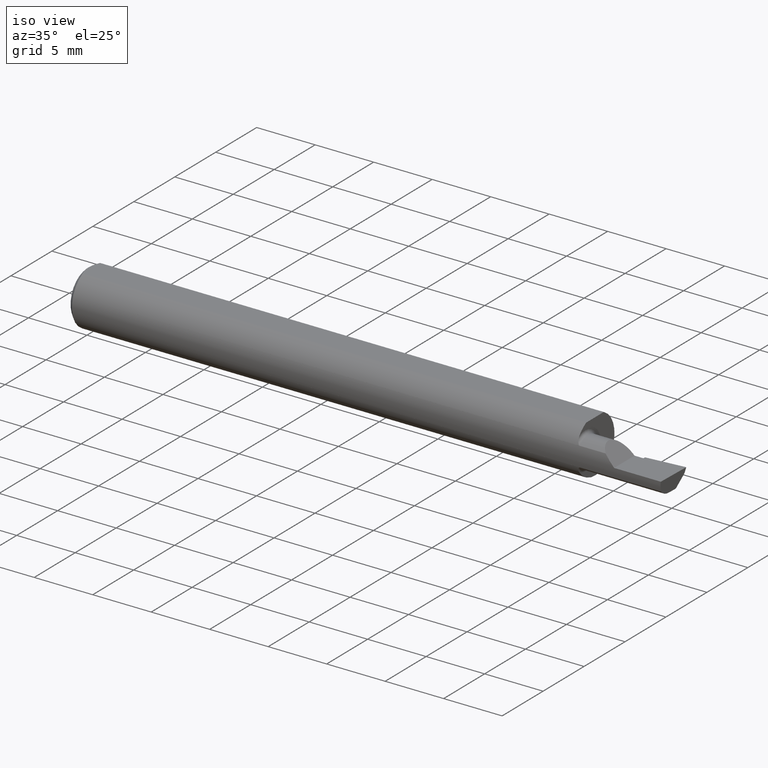
[diagram: clean part render]
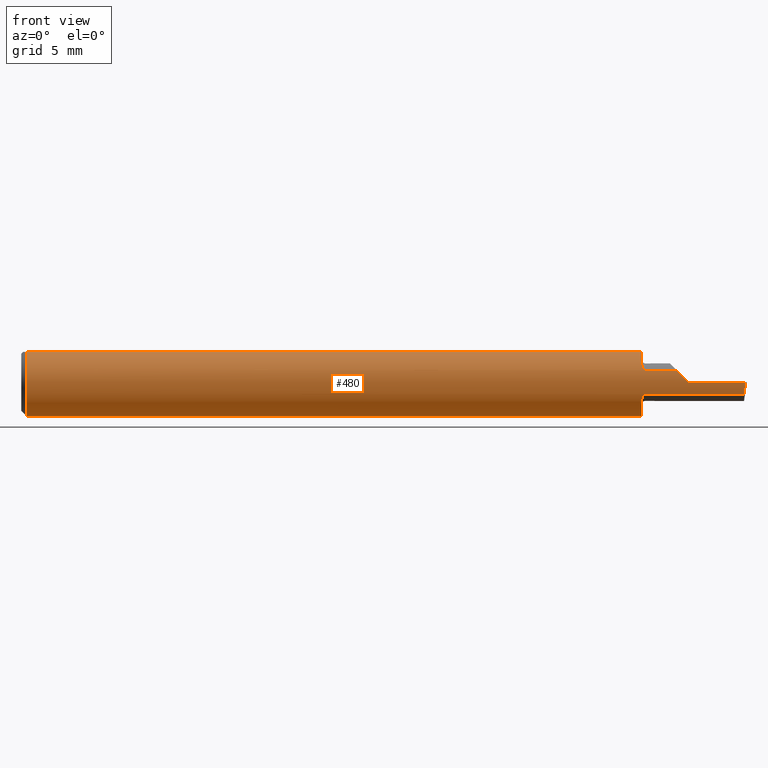
[diagram: tour spotlight — one face highlighted and labeled with its STEP entity id]
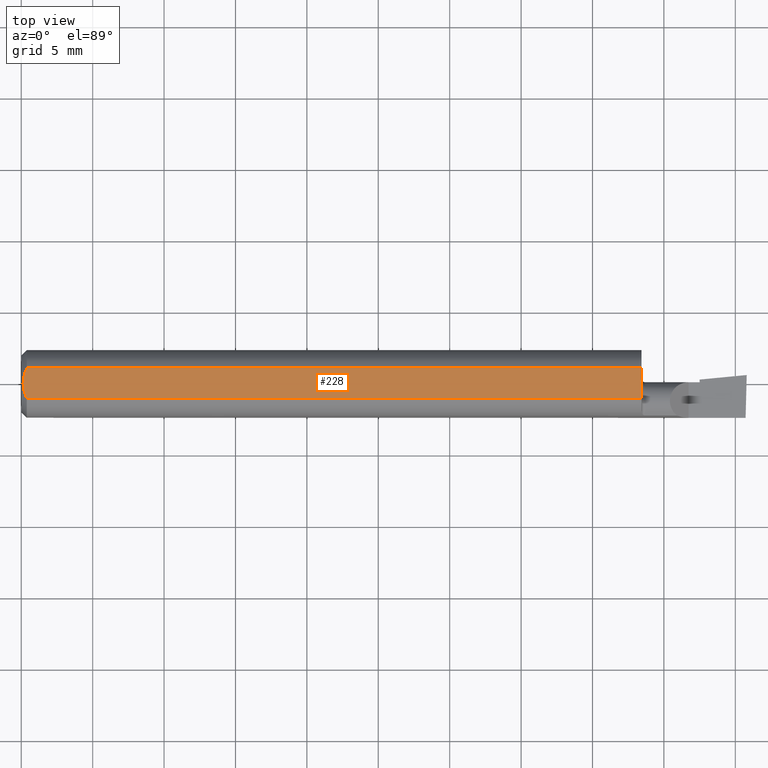
[diagram: tour spotlight — one face highlighted and labeled with its STEP entity id]
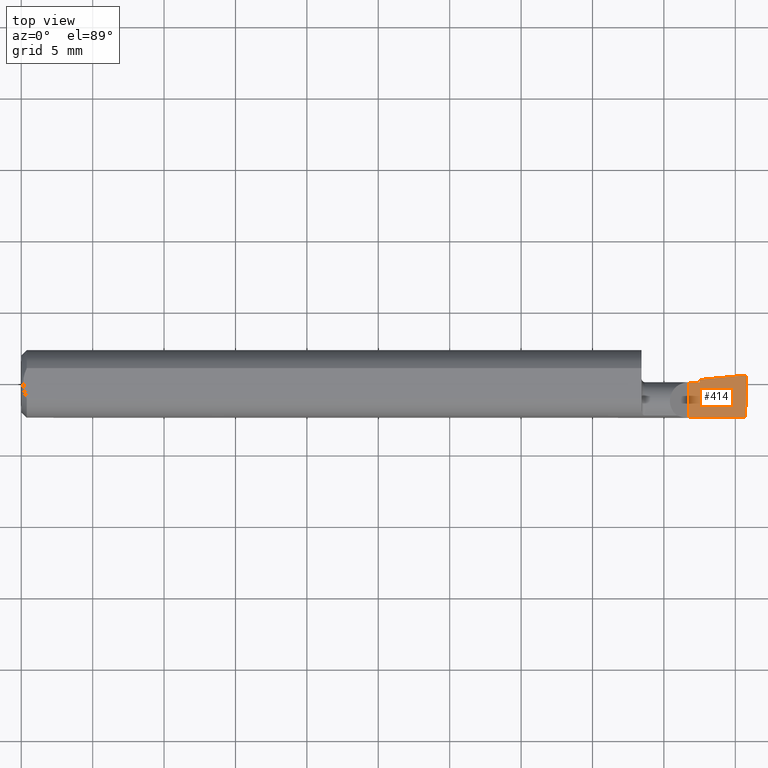
[diagram: tour spotlight — one face highlighted and labeled with its STEP entity id]
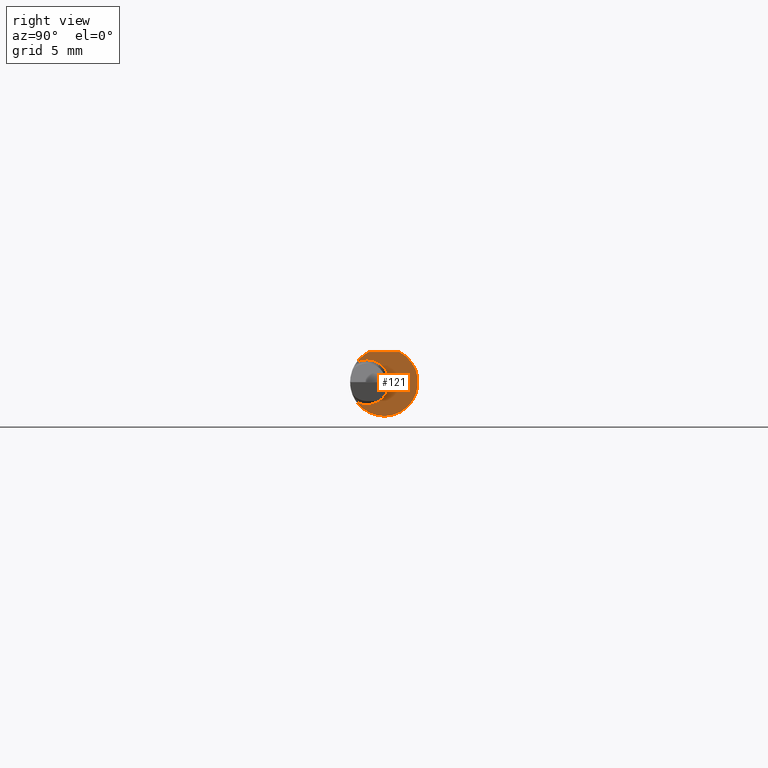
[diagram: tour spotlight — one face highlighted and labeled with its STEP entity id]
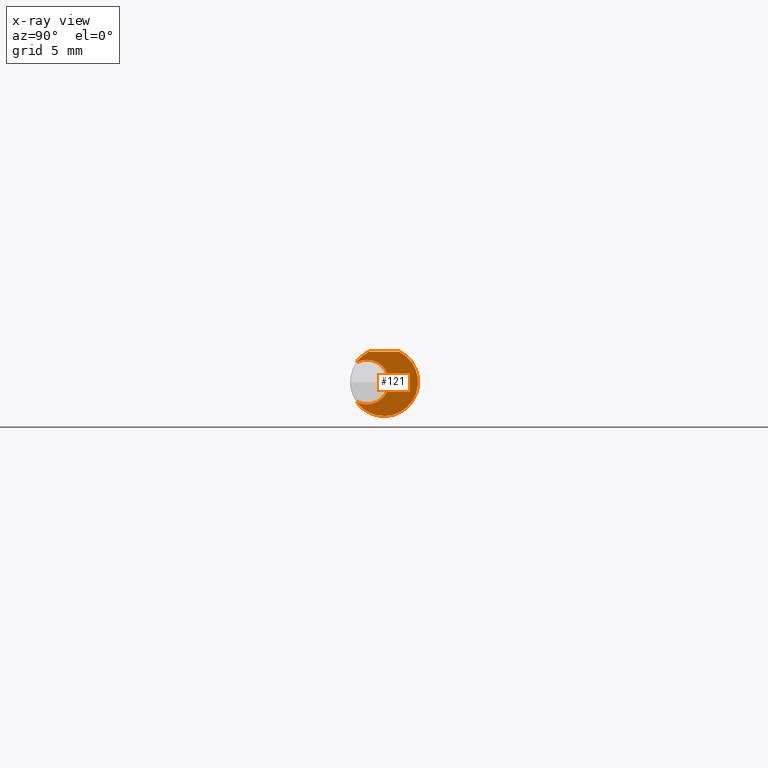
[diagram: x-ray of the same camera — body ghosted, this tour face saturated]
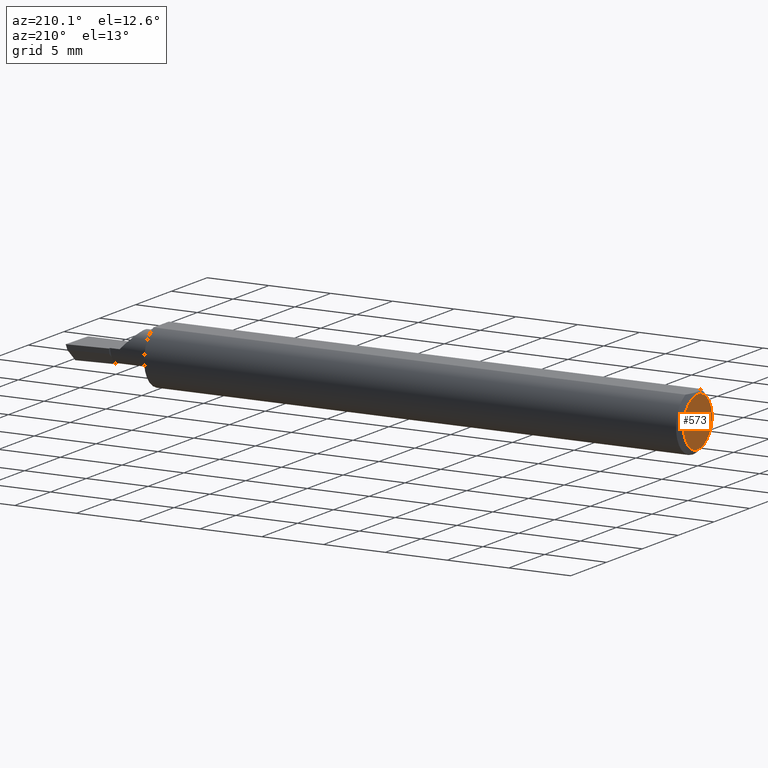
[diagram: tour spotlight — one face highlighted and labeled with its STEP entity id]
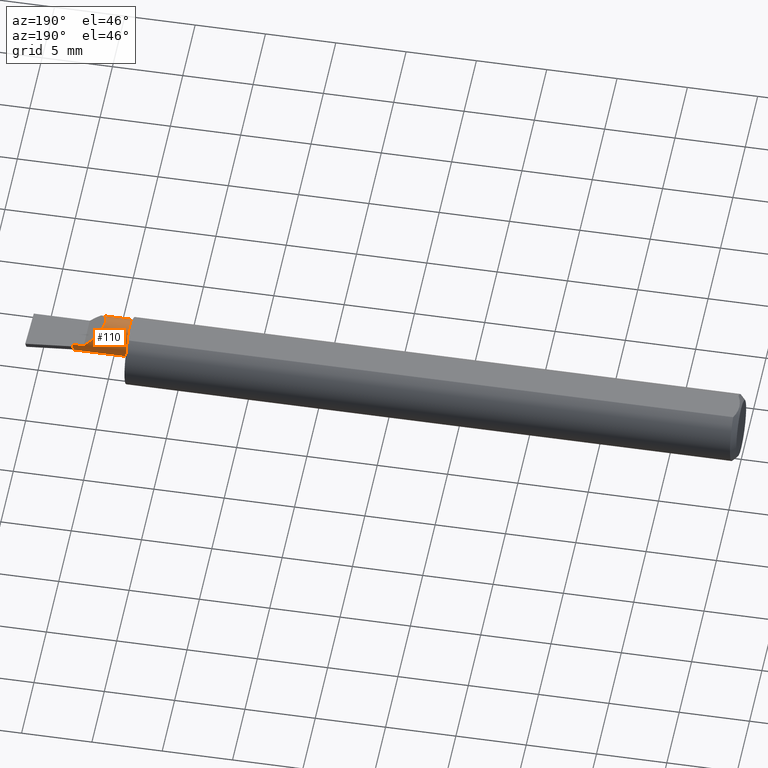
[diagram: tour spotlight — one face highlighted and labeled with its STEP entity id]
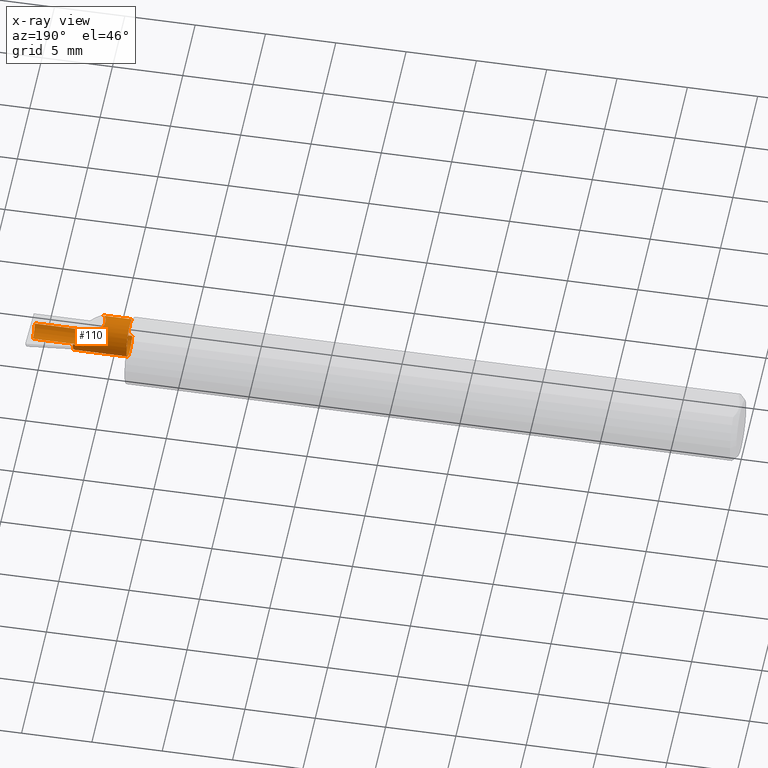
[diagram: x-ray of the same camera — body ghosted, this tour face saturated]
A machine part: a face-by-face anatomy tour. The part has 17 B-rep faces; the first image is the clean iso view, then the 6 largest visible faces are spotlighted one at a time (largest first), each with its STEP entity span.

Face 1 — front view, entity #480. In plain terms, the highlighted cylindrical surface (edge-blend (fillet) strip) has radius 2.3774 mm, axis along (-1, -0, -0).
Definition (entity closure, byte-faithful):
#2 = CARTESIAN_POINT ( 'NONE',  ( 1.807072063843881526, -0.08761684210526321515, 0.03292793615611791513 ) ) ;
#5 = EDGE_CURVE ( 'NONE', #476, #45, #74, .T. ) ;
#8 = CARTESIAN_POINT ( 'NONE',  ( 0.01499999999999999598, 0.000000000000000000, 0.000000000000000000 ) ) ;
#13 = VERTEX_POINT ( 'NONE', #88 ) ;
#18 = DIRECTION ( 'NONE',  ( -1.000000000000000000, -0.000000000000000000, -0.000000000000000000 ) ) ;
#35 = CARTESIAN_POINT ( 'NONE',  ( 1.715286915582778349, -0.08634457937708869824, -0.03614788177268708769 ) ) ;
#38 = CARTESIAN_POINT ( 'NONE',  ( 1.719999999999999973, -0.08761684210526313188, -0.03292793615611801228 ) ) ;
#45 = VERTEX_POINT ( 'NONE', #188 ) ;
#51 = DIRECTION ( 'NONE',  ( 0.000000000000000000, 0.000000000000000000, 1.000000000000000000 ) ) ;
#59 = CARTESIAN_POINT ( 'NONE',  ( 1.719999999999999973, -0.08761684210526289596, 0.03292793615611830371 ) ) ;
#60 = ORIENTED_EDGE ( 'NONE', *, *, #95, .F. ) ;
#62 = CARTESIAN_POINT ( 'NONE',  ( 1.709999999999898490, -0.07844579323533026893, 0.05128294267166446513 ) ) ;
#63 = ORIENTED_EDGE ( 'NONE', *, *, #298, .F. ) ;
#67 = CARTESIAN_POINT ( 'NONE',  ( 0.01499999999999999598, 0.000000000000000000, 0.000000000000000000 ) ) ;
#68 = VECTOR ( 'NONE', #445, 39.37007874015748143 ) ;
#74 = B_SPLINE_CURVE_WITH_KNOTS ( 'NONE', 3,
 ( #402, #406, #266, #454, #35, #231, #135, #323, #272, #224 ),
 .UNSPECIFIED., .F., .F.,
 ( 4, 2, 2, 2, 4 ),
 ( 1.964515010636166552E-07, 9.235243646263626891E-05, 0.0001845084214242089275, 0.0003688203913473437549, 0.0007374443311936186140 ),
 .UNSPECIFIED. ) ;
#75 = CARTESIAN_POINT ( 'NONE',  ( 0.000000000000000000, -0.04209513035969835587, 0.08360000000000000764 ) ) ;
#82 = CIRCLE ( 'NONE', #274, 0.09360000000000001652 ) ;
#86 = EDGE_CURVE ( 'NONE', #496, #118, #593, .T. ) ;
#88 = CARTESIAN_POINT ( 'NONE',  ( 1.807072063843881526, -0.08761684210526321515, 0.03292793615611791513 ) ) ;
#92 = VERTEX_POINT ( 'NONE', #620 ) ;
#93 = EDGE_CURVE ( 'NONE', #509, #13, #232, .T. ) ;
#95 = EDGE_CURVE ( 'NONE', #92, #341, #484, .T. ) ;
#96 = CARTESIAN_POINT ( 'NONE',  ( 1.840000000000000080, -0.09360000000000005815, 1.959434878635762025E-17 ) ) ;
#97 = CARTESIAN_POINT ( 'NONE',  ( 1.996910061254837165, -0.09360000000000009979, -6.663204267364720514E-17 ) ) ;
#107 = CARTESIAN_POINT ( 'NONE',  ( 1.996910061254837165, -0.09360000000000009979, -6.663204267364720514E-17 ) ) ;
#114 = CARTESIAN_POINT ( 'NONE',  ( 1.709999999999999964, 0.000000000000000000, 0.000000000000000000 ) ) ;
#115 = ORIENTED_EDGE ( 'NONE', *, *, #183, .T. ) ;
#117 = CARTESIAN_POINT ( 'NONE',  ( 1.715303445302489349, -0.08635481258357650958, 0.03612357338114666194 ) ) ;
#118 = VERTEX_POINT ( 'NONE', #107 ) ;
#120 = CARTESIAN_POINT ( 'NONE',  ( 5.659797890829555466E-31, -0.09359999999999998876, 1.030335658007946046E-15 ) ) ;
#131 = ORIENTED_EDGE ( 'NONE', *, *, #5, .F. ) ;
#135 = CARTESIAN_POINT ( 'NONE',  ( 1.712677195950602860, -0.08414098289636359751, -0.04106822915973741550 ) ) ;
#139 = CARTESIAN_POINT ( 'NONE',  ( 1.709999999999999964, -0.07563789473684218168, 0.05513500593795547106 ) ) ;
#143 = LINE ( 'NONE', #276, #335 ) ;
#144 = CARTESIAN_POINT ( 'NONE',  ( 1.840000000000000080, -0.09360000000000005815, 1.959434878635762025E-17 ) ) ;
#148 = B_SPLINE_CURVE_WITH_KNOTS ( 'NONE', 3,
 ( #488, #62, #442, #250, #483, #117, #387, #491, #585, #59 ),
 .UNSPECIFIED., .F., .F.,
 ( 4, 2, 2, 2, 4 ),
 ( 0.0002213210176920300961, 0.0005840120096731141620, 0.0007653575056636530236, 0.0008560302536589276586, 0.0009467030016542025105 ),
 .UNSPECIFIED. ) ;
#150 = VECTOR ( 'NONE', #495, 39.37007874015748143 ) ;
#167 = ORIENTED_EDGE ( 'NONE', *, *, #285, .F. ) ;
#174 = ORIENTED_EDGE ( 'NONE', *, *, #510, .F. ) ;
#177 = ORIENTED_EDGE ( 'NONE', *, *, #199, .T. ) ;
#181 = CIRCLE ( 'NONE', #440, 0.09360000000000001652 ) ;
#183 = EDGE_CURVE ( 'NONE', #92, #603, #383, .T. ) ;
#185 = EDGE_LOOP ( 'NONE', ( #167, #499, #177, #334, #321, #63, #60, #115, #174, #319, #351, #247, #131 ) ) ;
#188 = CARTESIAN_POINT ( 'NONE',  ( 1.709999999999999964, -0.07563789473684218168, -0.05513500593795547106 ) ) ;
#192 = DIRECTION ( 'NONE',  ( 1.000000000000000000, -4.268512490100411279E-18, 0.000000000000000000 ) ) ;
#199 = EDGE_CURVE ( 'NONE', #118, #509, #385, .T. ) ;
#204 = CARTESIAN_POINT ( 'NONE',  ( 0.000000000000000000, 0.000000000000000000, 0.000000000000000000 ) ) ;
#208 = LINE ( 'NONE', #539, #518 ) ;
#224 = CARTESIAN_POINT ( 'NONE',  ( 1.709999999999999964, -0.07563789473684218168, -0.05513500593795547106 ) ) ;
#231 = CARTESIAN_POINT ( 'NONE',  ( 1.713517105801555918, -0.08509955497191655505, -0.03903086882732484386 ) ) ;
#232 =( BOUNDED_CURVE ( )  B_SPLINE_CURVE ( 3, ( #144, #569, #376, #2 ),
 .UNSPECIFIED., .F., .F. ) 
 B_SPLINE_CURVE_WITH_KNOTS ( ( 4, 4 ),
 ( 4.712388980384689674, 5.071876106261397510 ),
 .UNSPECIFIED. ) 
 CURVE ( )  GEOMETRIC_REPRESENTATION_ITEM ( )  RATIONAL_B_SPLINE_CURVE ( ( 1.000000000000000000, 0.9892597135044074452, 0.9892597135044074452, 1.000000000000000000 ) ) 
 REPRESENTATION_ITEM ( '' )  );
#236 = CARTESIAN_POINT ( 'NONE',  ( 1.994214979946649979, -0.09158396120079809188, -0.02237196186856233587 ) ) ;
#239 = DIRECTION ( 'NONE',  ( 0.000000000000000000, 0.000000000000000000, 1.000000000000000000 ) ) ;
#241 = EDGE_CURVE ( 'NONE', #258, #512, #618, .T. ) ;
#247 = ORIENTED_EDGE ( 'NONE', *, *, #270, .F. ) ;
#250 = CARTESIAN_POINT ( 'NONE',  ( 1.712672428355745069, -0.08413290827570171770, 0.04108351314867479676 ) ) ;
#257 = DIRECTION ( 'NONE',  ( 1.000000000000000000, -4.268512490100411279E-18, 0.000000000000000000 ) ) ;
#258 = VERTEX_POINT ( 'NONE', #498 ) ;
#260 = CARTESIAN_POINT ( 'NONE',  ( 1.709999999999999964, 0.04209513035969836975, 0.08360000000000000764 ) ) ;
#266 = CARTESIAN_POINT ( 'NONE',  ( 1.717673407485087012, -0.08736256188074749407, -0.03360771121218446289 ) ) ;
#269 = VERTEX_POINT ( 'NONE', #260 ) ;
#270 = EDGE_CURVE ( 'NONE', #45, #269, #82, .T. ) ;
#272 = CARTESIAN_POINT ( 'NONE',  ( 1.709999999999999964, -0.07847738094181314072, -0.05123960853979434016 ) ) ;
#274 = AXIS2_PLACEMENT_3D ( 'NONE', #114, #257, #536 ) ;
#276 = CARTESIAN_POINT ( 'NONE',  ( 0.000000000000000000, 0.04209513035969837669, 0.08360000000000000764 ) ) ;
#280 = AXIS2_PLACEMENT_3D ( 'NONE', #329, #192, #378 ) ;
#285 = EDGE_CURVE ( 'NONE', #496, #476, #208, .T. ) ;
#286 = CARTESIAN_POINT ( 'NONE',  ( 1.993022307651337144, -0.08761684210526320127, -0.03292793615611794983 ) ) ;
#296 = DIRECTION ( 'NONE',  ( -1.000000000000000000, 4.268512490100411279E-18, -0.000000000000000000 ) ) ;
#298 = EDGE_CURVE ( 'NONE', #341, #606, #148, .T. ) ;
#306 = DIRECTION ( 'NONE',  ( 0.000000000000000000, 0.000000000000000000, 1.000000000000000000 ) ) ;
#319 = ORIENTED_EDGE ( 'NONE', *, *, #241, .F. ) ;
#321 = ORIENTED_EDGE ( 'NONE', *, *, #372, .F. ) ;
#323 = CARTESIAN_POINT ( 'NONE',  ( 1.710641926394870227, -0.08094594005641383982, -0.04722385609747348917 ) ) ;
#329 = CARTESIAN_POINT ( 'NONE',  ( 1.709999999999999964, 0.000000000000000000, 0.000000000000000000 ) ) ;
#334 = ORIENTED_EDGE ( 'NONE', *, *, #93, .T. ) ;
#335 = VECTOR ( 'NONE', #428, 39.37007874015748143 ) ;
#341 = VERTEX_POINT ( 'NONE', #139 ) ;
#342 = CARTESIAN_POINT ( 'NONE',  ( 0.01499999999999999944, -0.04209513035969835587, 0.08360000000000000764 ) ) ;
#351 = ORIENTED_EDGE ( 'NONE', *, *, #524, .T. ) ;
#364 = CARTESIAN_POINT ( 'NONE',  ( 1.794999999999999929, -0.08761684210526320127, 0.03292793615611794983 ) ) ;
#371 = CYLINDRICAL_SURFACE ( 'NONE', #587, 0.09360000000000001652 ) ;
#372 = EDGE_CURVE ( 'NONE', #606, #13, #453, .T. ) ;
#376 = CARTESIAN_POINT ( 'NONE',  ( 1.817628038131437362, -0.09158396120079809188, 0.02237196186856229424 ) ) ;
#378 = DIRECTION ( 'NONE',  ( 0.000000000000000000, 1.000000000000000000, 0.000000000000000000 ) ) ;
#383 = LINE ( 'NONE', #75, #150 ) ;
#385 = LINE ( 'NONE', #120, #68 ) ;
#387 = CARTESIAN_POINT ( 'NONE',  ( 1.715970824386036320, -0.08673325660711261875, 0.03520002281093527474 ) ) ;
#402 = CARTESIAN_POINT ( 'NONE',  ( 1.719999999999999973, -0.08761684210526313188, -0.03292793615611801228 ) ) ;
#406 = CARTESIAN_POINT ( 'NONE',  ( 1.718769044122002265, -0.08761684210526318739, -0.03292793615611804003 ) ) ;
#419 = CARTESIAN_POINT ( 'NONE',  ( 1.993022307651337144, -0.08761684210526320127, -0.03292793615611794983 ) ) ;
#428 = DIRECTION ( 'NONE',  ( 1.000000000000000000, 0.000000000000000000, 0.000000000000000000 ) ) ;
#440 = AXIS2_PLACEMENT_3D ( 'NONE', #8, #487, #51 ) ;
#442 = CARTESIAN_POINT ( 'NONE',  ( 1.710655979727548681, -0.08096918006680571545, 0.04717962600073366541 ) ) ;
#445 = DIRECTION ( 'NONE',  ( -1.000000000000000000, -0.000000000000000000, -0.000000000000000000 ) ) ;
#453 = LINE ( 'NONE', #364, #574 ) ;
#454 = CARTESIAN_POINT ( 'NONE',  ( 1.715969295948312601, -0.08673209544129667492, -0.03520282789281035246 ) ) ;
#464 = DIRECTION ( 'NONE',  ( -1.000000000000000000, -0.000000000000000000, -0.000000000000000000 ) ) ;
#476 = VERTEX_POINT ( 'NONE', #38 ) ;
#477 = CARTESIAN_POINT ( 'NONE',  ( 0.01499999999999999598, 0.000000000000000000, -0.09360000000000001652 ) ) ;
#480 = ADVANCED_FACE ( 'NONE', ( #563 ), #371, .T. ) ;
#483 = CARTESIAN_POINT ( 'NONE',  ( 1.713520254924612907, -0.08510451844419440748, 0.03902058150582370794 ) ) ;
#484 = CIRCLE ( 'NONE', #280, 0.09360000000000001652 ) ;
#487 = DIRECTION ( 'NONE',  ( -1.000000000000000000, -0.000000000000000000, -0.000000000000000000 ) ) ;
#488 = CARTESIAN_POINT ( 'NONE',  ( 1.709999999999999964, -0.07563789473684218168, 0.05513500593795547106 ) ) ;
#491 = CARTESIAN_POINT ( 'NONE',  ( 1.717682474265520121, -0.08736531690552415408, 0.03360060727967501687 ) ) ;
#495 = DIRECTION ( 'NONE',  ( -1.000000000000000000, -0.000000000000000000, -0.000000000000000000 ) ) ;
#496 = VERTEX_POINT ( 'NONE', #286 ) ;
#497 = AXIS2_PLACEMENT_3D ( 'NONE', #67, #18, #306 ) ;
#498 = CARTESIAN_POINT ( 'NONE',  ( 0.01499999999999999598, 0.04209513035969837669, 0.08360000000000000764 ) ) ;
#499 = ORIENTED_EDGE ( 'NONE', *, *, #86, .T. ) ;
#509 = VERTEX_POINT ( 'NONE', #96 ) ;
#510 = EDGE_CURVE ( 'NONE', #512, #603, #181, .T. ) ;
#512 = VERTEX_POINT ( 'NONE', #477 ) ;
#518 = VECTOR ( 'NONE', #296, 39.37007874015748143 ) ;
#524 = EDGE_CURVE ( 'NONE', #258, #269, #143, .T. ) ;
#527 = CARTESIAN_POINT ( 'NONE',  ( 1.719999999999999973, -0.08761684210526289596, 0.03292793615611830371 ) ) ;
#536 = DIRECTION ( 'NONE',  ( 0.000000000000000000, 1.000000000000000000, 0.000000000000000000 ) ) ;
#539 = CARTESIAN_POINT ( 'NONE',  ( 1.794999999999999929, -0.08761684210526320127, -0.03292793615611794983 ) ) ;
#563 = FACE_OUTER_BOUND ( 'NONE', #185, .T. ) ;
#564 = CARTESIAN_POINT ( 'NONE',  ( 1.995524967455635235, -0.09360000000000001652, -0.01127681812736616024 ) ) ;
#569 = CARTESIAN_POINT ( 'NONE',  ( 1.828723181872633941, -0.09360000000000001652, 0.01127681812736609432 ) ) ;
#574 = VECTOR ( 'NONE', #602, 39.37007874015748143 ) ;
#585 = CARTESIAN_POINT ( 'NONE',  ( 1.718776364690567382, -0.08761684210559185504, 0.03292793615524471085 ) ) ;
#587 = AXIS2_PLACEMENT_3D ( 'NONE', #204, #464, #239 ) ;
#593 =( BOUNDED_CURVE ( )  B_SPLINE_CURVE ( 3, ( #419, #236, #564, #97 ),
 .UNSPECIFIED., .F., .F. ) 
 B_SPLINE_CURVE_WITH_KNOTS ( ( 4, 4 ),
 ( 1.001259756638122278, 1.360746882514829226 ),
 .UNSPECIFIED. ) 
 CURVE ( )  GEOMETRIC_REPRESENTATION_ITEM ( )  RATIONAL_B_SPLINE_CURVE ( ( 1.000000000000000000, 0.9892597135044074452, 0.9892597135044074452, 1.000000000000000000 ) ) 
 REPRESENTATION_ITEM ( '' )  );
#602 = DIRECTION ( 'NONE',  ( 1.000000000000000000, -4.268512490100411279E-18, 0.000000000000000000 ) ) ;
#603 = VERTEX_POINT ( 'NONE', #342 ) ;
#606 = VERTEX_POINT ( 'NONE', #527 ) ;
#618 = CIRCLE ( 'NONE', #497, 0.09360000000000001652 ) ;
#620 = CARTESIAN_POINT ( 'NONE',  ( 1.709999999999999964, -0.04209513035969843220, 0.08360000000000000764 ) ) ;

Face 2 — top view, entity #228. In plain terms, the highlighted planar face has unit normal (0, -0, -1).
Definition (entity closure, byte-faithful):
#12 = DIRECTION ( 'NONE',  ( 0.000000000000000000, 1.000000000000000000, -1.189000693621284344E-16 ) ) ;
#31 = ORIENTED_EDGE ( 'NONE', *, *, #183, .F. ) ;
#36 = LINE ( 'NONE', #367, #218 ) ;
#56 = ORIENTED_EDGE ( 'NONE', *, *, #439, .F. ) ;
#75 = CARTESIAN_POINT ( 'NONE',  ( 0.000000000000000000, -0.04209513035969835587, 0.08360000000000000764 ) ) ;
#81 = CARTESIAN_POINT ( 'NONE',  ( 0.01499999999999999598, 0.04209513035969837669, 0.08360000000000000764 ) ) ;
#92 = VERTEX_POINT ( 'NONE', #620 ) ;
#128 = CARTESIAN_POINT ( 'NONE',  ( 0.01499999999999999944, -0.04209513035969835587, 0.08360000000000000764 ) ) ;
#130 = CARTESIAN_POINT ( 'NONE',  ( 0.009492654797564337166, 0.02859466010166625619, 0.08359999999999997988 ) ) ;
#143 = LINE ( 'NONE', #276, #335 ) ;
#150 = VECTOR ( 'NONE', #495, 39.37007874015748143 ) ;
#183 = EDGE_CURVE ( 'NONE', #92, #603, #383, .T. ) ;
#195 = ORIENTED_EDGE ( 'NONE', *, *, #478, .F. ) ;
#202 = PLANE ( 'NONE',  #544 ) ;
#218 = VECTOR ( 'NONE', #225, 39.37007874015748143 ) ;
#225 = DIRECTION ( 'NONE',  ( -4.268512490100411279E-18, -1.000000000000000000, 1.189000693621284344E-16 ) ) ;
#228 = ADVANCED_FACE ( 'NONE', ( #390 ), #202, .F. ) ;
#254 = ORIENTED_EDGE ( 'NONE', *, *, #524, .F. ) ;
#258 = VERTEX_POINT ( 'NONE', #498 ) ;
#260 = CARTESIAN_POINT ( 'NONE',  ( 1.709999999999999964, 0.04209513035969836975, 0.08360000000000000764 ) ) ;
#269 = VERTEX_POINT ( 'NONE', #260 ) ;
#276 = CARTESIAN_POINT ( 'NONE',  ( 0.000000000000000000, 0.04209513035969837669, 0.08360000000000000764 ) ) ;
#292 = ORIENTED_EDGE ( 'NONE', *, *, #343, .F. ) ;
#311 = CARTESIAN_POINT ( 'NONE',  ( 0.01203648650249650523, 0.03550565407121123590, 0.08360000000000000764 ) ) ;
#335 = VECTOR ( 'NONE', #428, 39.37007874015748143 ) ;
#342 = CARTESIAN_POINT ( 'NONE',  ( 0.01499999999999999944, -0.04209513035969835587, 0.08360000000000000764 ) ) ;
#343 = EDGE_CURVE ( 'NONE', #603, #446, #420, .T. ) ;
#353 = CARTESIAN_POINT ( 'NONE',  ( 2.000000000000000000, 0.1436000000000000332, 0.08359999999999999376 ) ) ;
#361 = CARTESIAN_POINT ( 'NONE',  ( 0.005000000000000223883, 0.007308422719211823959, 0.08360000000000000764 ) ) ;
#367 = CARTESIAN_POINT ( 'NONE',  ( 1.709999999999999964, 0.1436000000000000332, 0.08359999999999999376 ) ) ;
#369 = CARTESIAN_POINT ( 'NONE',  ( 0.005000000000000228220, -0.007328888879231052964, 0.08360000000000000764 ) ) ;
#383 = LINE ( 'NONE', #75, #150 ) ;
#390 = FACE_OUTER_BOUND ( 'NONE', #549, .T. ) ;
#405 = CARTESIAN_POINT ( 'NONE',  ( 0.01206089165507025739, -0.03555991978469312531, 0.08360000000000000764 ) ) ;
#407 = CARTESIAN_POINT ( 'NONE',  ( 0.005000000000000236026, 1.025183009042025117E-17, 0.08360000000000000764 ) ) ;
#410 = CARTESIAN_POINT ( 'NONE',  ( 0.005000000000000236026, 1.025183009042025117E-17, 0.08360000000000000764 ) ) ;
#420 = B_SPLINE_CURVE_WITH_KNOTS ( 'NONE', 3,
 ( #128, #405, #612, #511, #369, #501 ),
 .UNSPECIFIED., .F., .F.,
 ( 4, 2, 4 ),
 ( 0.005785415439423114564, 0.006333348270144337384, 0.006881281100865560205 ),
 .UNSPECIFIED. ) ;
#428 = DIRECTION ( 'NONE',  ( 1.000000000000000000, 0.000000000000000000, 0.000000000000000000 ) ) ;
#432 = DIRECTION ( 'NONE',  ( 0.000000000000000000, -1.189000693621284344E-16, -1.000000000000000000 ) ) ;
#439 = EDGE_CURVE ( 'NONE', #269, #92, #36, .T. ) ;
#446 = VERTEX_POINT ( 'NONE', #407 ) ;
#478 = EDGE_CURVE ( 'NONE', #446, #258, #546, .T. ) ;
#495 = DIRECTION ( 'NONE',  ( -1.000000000000000000, -0.000000000000000000, -0.000000000000000000 ) ) ;
#498 = CARTESIAN_POINT ( 'NONE',  ( 0.01499999999999999598, 0.04209513035969837669, 0.08360000000000000764 ) ) ;
#501 = CARTESIAN_POINT ( 'NONE',  ( 0.005000000000000236026, 1.025183009042025117E-17, 0.08360000000000000764 ) ) ;
#511 = CARTESIAN_POINT ( 'NONE',  ( 0.005975039161239525769, -0.01453776427033148279, 0.08359999999999997988 ) ) ;
#524 = EDGE_CURVE ( 'NONE', #258, #269, #143, .T. ) ;
#544 = AXIS2_PLACEMENT_3D ( 'NONE', #353, #432, #12 ) ;
#546 = B_SPLINE_CURVE_WITH_KNOTS ( 'NONE', 3,
 ( #410, #361, #548, #130, #311, #81 ),
 .UNSPECIFIED., .F., .F.,
 ( 4, 2, 4 ),
 ( 0.006881281100865560205, 0.007427683811376459971, 0.007974086521887359738 ),
 .UNSPECIFIED. ) ;
#548 = CARTESIAN_POINT ( 'NONE',  ( 0.005981829149300850468, 0.01454044632356567279, 0.08360000000000000764 ) ) ;
#549 = EDGE_LOOP ( 'NONE', ( #56, #254, #195, #292, #31 ) ) ;
#603 = VERTEX_POINT ( 'NONE', #342 ) ;
#612 = CARTESIAN_POINT ( 'NONE',  ( 0.009539353699420832430, -0.02875682547511371895, 0.08360000000000000764 ) ) ;
#620 = CARTESIAN_POINT ( 'NONE',  ( 1.709999999999999964, -0.04209513035969843220, 0.08360000000000000764 ) ) ;

Face 3 — top view, entity #414. In plain terms, the highlighted planar face has unit normal (-0, 0, -1).
Definition (entity closure, byte-faithful):
#27 = ORIENTED_EDGE ( 'NONE', *, *, #199, .F. ) ;
#41 = VERTEX_POINT ( 'NONE', #458 ) ;
#65 = LINE ( 'NONE', #159, #207 ) ;
#68 = VECTOR ( 'NONE', #445, 39.37007874015748143 ) ;
#87 = DIRECTION ( 'NONE',  ( -5.493159289247764363E-16, 0.000000000000000000, -1.000000000000000000 ) ) ;
#96 = CARTESIAN_POINT ( 'NONE',  ( 1.840000000000000080, -0.09360000000000005815, 1.959434878635762025E-17 ) ) ;
#107 = CARTESIAN_POINT ( 'NONE',  ( 1.996910061254837165, -0.09360000000000009979, -6.663204267364720514E-17 ) ) ;
#118 = VERTEX_POINT ( 'NONE', #107 ) ;
#120 = CARTESIAN_POINT ( 'NONE',  ( 5.659797890829555466E-31, -0.09359999999999998876, 1.030335658007946046E-15 ) ) ;
#122 = VERTEX_POINT ( 'NONE', #475 ) ;
#133 = CARTESIAN_POINT ( 'NONE',  ( 1.870000000000000107, -0.2500000000000000555, 3.114870918614344945E-18 ) ) ;
#152 = CARTESIAN_POINT ( 'NONE',  ( 1.870000000000000107, 0.004399999999999983785, 1.030335658007946243E-15 ) ) ;
#155 = CARTESIAN_POINT ( 'NONE',  ( 1.870000000000000107, 0.01188242373432203680, 1.035114278849349724E-15 ) ) ;
#159 = CARTESIAN_POINT ( 'NONE',  ( 1.992819506803471974, -0.2498119721683277894, -6.435184055121769344E-17 ) ) ;
#176 = DIRECTION ( 'NONE',  ( 0.9953961983671787417, 0.09584575252022463354, -5.467869873542577569E-16 ) ) ;
#199 = EDGE_CURVE ( 'NONE', #118, #509, #385, .T. ) ;
#206 = VERTEX_POINT ( 'NONE', #155 ) ;
#207 = VECTOR ( 'NONE', #253, 39.37007874015748854 ) ;
#212 = ORIENTED_EDGE ( 'NONE', *, *, #482, .F. ) ;
#214 = LINE ( 'NONE', #223, #333 ) ;
#220 = AXIS2_PLACEMENT_3D ( 'NONE', #320, #87, #268 ) ;
#223 = CARTESIAN_POINT ( 'NONE',  ( 1.253289949938072301, -0.04749999999999999362, 3.418835249456273698E-16 ) ) ;
#229 = CARTESIAN_POINT ( 'NONE',  ( 1.840000000000000080, -0.2500000000000000555, 1.959434878635762025E-17 ) ) ;
#233 = ORIENTED_EDGE ( 'NONE', *, *, #392, .F. ) ;
#238 = VECTOR ( 'NONE', #245, 39.37007874015748143 ) ;
#245 = DIRECTION ( 'NONE',  ( 1.000000000000000000, -4.268512490100411279E-18, 0.000000000000000000 ) ) ;
#253 = DIRECTION ( 'NONE',  ( 0.02617694830785724860, 0.9996573249755575929, -1.459184416195239787E-17 ) ) ;
#265 = LINE ( 'NONE', #133, #305 ) ;
#268 = DIRECTION ( 'NONE',  ( -1.000000000000000000, 0.000000000000000000, 5.493159289247764363E-16 ) ) ;
#305 = VECTOR ( 'NONE', #317, 39.37007874015748143 ) ;
#308 = EDGE_CURVE ( 'NONE', #118, #41, #65, .T. ) ;
#317 = DIRECTION ( 'NONE',  ( 4.268512490100411279E-18, 1.000000000000000000, -2.344761903626518103E-33 ) ) ;
#320 = CARTESIAN_POINT ( 'NONE',  ( 2.000000000000000000, -0.2500000000000000555, -6.829619984160658046E-17 ) ) ;
#333 = VECTOR ( 'NONE', #176, 39.37007874015748143 ) ;
#349 = EDGE_LOOP ( 'NONE', ( #27, #411, #430, #486, #212, #233 ) ) ;
#365 = EDGE_CURVE ( 'NONE', #206, #41, #214, .T. ) ;
#379 = CARTESIAN_POINT ( 'NONE',  ( 2.215357982367772171E-19, 0.004399999999999983785, 1.030335658007946046E-15 ) ) ;
#385 = LINE ( 'NONE', #120, #68 ) ;
#392 = EDGE_CURVE ( 'NONE', #509, #122, #401, .T. ) ;
#393 = EDGE_CURVE ( 'NONE', #507, #206, #265, .T. ) ;
#401 = LINE ( 'NONE', #229, #426 ) ;
#411 = ORIENTED_EDGE ( 'NONE', *, *, #308, .T. ) ;
#414 = ADVANCED_FACE ( 'NONE', ( #552 ), #607, .F. ) ;
#426 = VECTOR ( 'NONE', #555, 39.37007874015748143 ) ;
#430 = ORIENTED_EDGE ( 'NONE', *, *, #365, .F. ) ;
#445 = DIRECTION ( 'NONE',  ( -1.000000000000000000, -0.000000000000000000, -0.000000000000000000 ) ) ;
#458 = CARTESIAN_POINT ( 'NONE',  ( 2.000000000000003553, 0.02440000000001020172, 3.227368937358794860E-14 ) ) ;
#475 = CARTESIAN_POINT ( 'NONE',  ( 1.840000000000000080, 0.004399999999999890110, 1.959434878635762025E-17 ) ) ;
#482 = EDGE_CURVE ( 'NONE', #122, #507, #535, .T. ) ;
#486 = ORIENTED_EDGE ( 'NONE', *, *, #393, .F. ) ;
#507 = VERTEX_POINT ( 'NONE', #152 ) ;
#509 = VERTEX_POINT ( 'NONE', #96 ) ;
#535 = LINE ( 'NONE', #379, #238 ) ;
#552 = FACE_OUTER_BOUND ( 'NONE', #349, .T. ) ;
#555 = DIRECTION ( 'NONE',  ( -0.000000000000000000, 1.000000000000000000, -0.000000000000000000 ) ) ;
#607 = PLANE ( 'NONE',  #220 ) ;

Face 4 — right view, entity #121. An x-ray twin of the same camera follows (body ghosted, this face saturated) — the face is partly hidden behind the body. In plain terms, the highlighted planar face has unit normal (1, -0, 0).
Definition (entity closure, byte-faithful):
#23 = ORIENTED_EDGE ( 'NONE', *, *, #95, .T. ) ;
#36 = LINE ( 'NONE', #367, #218 ) ;
#45 = VERTEX_POINT ( 'NONE', #188 ) ;
#58 = CIRCLE ( 'NONE', #399, 0.06189999999999996894 ) ;
#82 = CIRCLE ( 'NONE', #274, 0.09360000000000001652 ) ;
#92 = VERTEX_POINT ( 'NONE', #620 ) ;
#95 = EDGE_CURVE ( 'NONE', #92, #341, #484, .T. ) ;
#114 = CARTESIAN_POINT ( 'NONE',  ( 1.709999999999999964, 0.000000000000000000, 0.000000000000000000 ) ) ;
#121 = ADVANCED_FACE ( 'NONE', ( #567 ), #332, .T. ) ;
#139 = CARTESIAN_POINT ( 'NONE',  ( 1.709999999999999964, -0.07563789473684218168, 0.05513500593795547106 ) ) ;
#178 = DIRECTION ( 'NONE',  ( -1.000000000000000000, 4.268512490100411279E-18, -0.000000000000000000 ) ) ;
#188 = CARTESIAN_POINT ( 'NONE',  ( 1.709999999999999964, -0.07563789473684218168, -0.05513500593795547106 ) ) ;
#192 = DIRECTION ( 'NONE',  ( 1.000000000000000000, -4.268512490100411279E-18, 0.000000000000000000 ) ) ;
#194 = DIRECTION ( 'NONE',  ( 1.000000000000000000, -4.268512490100411279E-18, 0.000000000000000000 ) ) ;
#218 = VECTOR ( 'NONE', #225, 39.37007874015748143 ) ;
#219 = CARTESIAN_POINT ( 'NONE',  ( 1.709999999999999964, -0.04749999999999999362, 0.000000000000000000 ) ) ;
#225 = DIRECTION ( 'NONE',  ( -4.268512490100411279E-18, -1.000000000000000000, 1.189000693621284344E-16 ) ) ;
#257 = DIRECTION ( 'NONE',  ( 1.000000000000000000, -4.268512490100411279E-18, 0.000000000000000000 ) ) ;
#260 = CARTESIAN_POINT ( 'NONE',  ( 1.709999999999999964, 0.04209513035969836975, 0.08360000000000000764 ) ) ;
#269 = VERTEX_POINT ( 'NONE', #260 ) ;
#270 = EDGE_CURVE ( 'NONE', #45, #269, #82, .T. ) ;
#274 = AXIS2_PLACEMENT_3D ( 'NONE', #114, #257, #536 ) ;
#277 = DIRECTION ( 'NONE',  ( 4.268512490100411279E-18, 1.000000000000000000, 0.000000000000000000 ) ) ;
#280 = AXIS2_PLACEMENT_3D ( 'NONE', #329, #192, #378 ) ;
#329 = CARTESIAN_POINT ( 'NONE',  ( 1.709999999999999964, 0.000000000000000000, 0.000000000000000000 ) ) ;
#332 = PLANE ( 'NONE',  #437 ) ;
#341 = VERTEX_POINT ( 'NONE', #139 ) ;
#367 = CARTESIAN_POINT ( 'NONE',  ( 1.709999999999999964, 0.1436000000000000332, 0.08359999999999999376 ) ) ;
#378 = DIRECTION ( 'NONE',  ( 0.000000000000000000, 1.000000000000000000, 0.000000000000000000 ) ) ;
#399 = AXIS2_PLACEMENT_3D ( 'NONE', #219, #178, #503 ) ;
#413 = EDGE_CURVE ( 'NONE', #341, #45, #58, .T. ) ;
#437 = AXIS2_PLACEMENT_3D ( 'NONE', #520, #194, #277 ) ;
#439 = EDGE_CURVE ( 'NONE', #269, #92, #36, .T. ) ;
#443 = EDGE_LOOP ( 'NONE', ( #474, #489, #23, #556 ) ) ;
#474 = ORIENTED_EDGE ( 'NONE', *, *, #270, .T. ) ;
#484 = CIRCLE ( 'NONE', #280, 0.09360000000000001652 ) ;
#489 = ORIENTED_EDGE ( 'NONE', *, *, #439, .T. ) ;
#503 = DIRECTION ( 'NONE',  ( 0.000000000000000000, -1.000000000000000000, 0.000000000000000000 ) ) ;
#520 = CARTESIAN_POINT ( 'NONE',  ( 1.709999999999999964, 0.01439999999999997705, 0.000000000000000000 ) ) ;
#536 = DIRECTION ( 'NONE',  ( 0.000000000000000000, 1.000000000000000000, 0.000000000000000000 ) ) ;
#556 = ORIENTED_EDGE ( 'NONE', *, *, #413, .T. ) ;
#567 = FACE_OUTER_BOUND ( 'NONE', #443, .T. ) ;
#620 = CARTESIAN_POINT ( 'NONE',  ( 1.709999999999999964, -0.04209513035969843220, 0.08360000000000000764 ) ) ;

Face 5 — auxiliary view, entity #573. In plain terms, the highlighted planar face has unit normal (1, 0, 0).
Definition (entity closure, byte-faithful):
#4 = CARTESIAN_POINT ( 'NONE',  ( 0.000000000000000000, 0.000000000000000000, 0.000000000000000000 ) ) ;
#11 = DIRECTION ( 'NONE',  ( 1.000000000000000000, 0.000000000000000000, 0.000000000000000000 ) ) ;
#14 = DIRECTION ( 'NONE',  ( 0.000000000000000000, 0.000000000000000000, 1.000000000000000000 ) ) ;
#34 = DIRECTION ( 'NONE',  ( -1.000000000000000000, -0.000000000000000000, -0.000000000000000000 ) ) ;
#78 = CARTESIAN_POINT ( 'NONE',  ( 0.000000000000000000, 0.000000000000000000, 0.000000000000000000 ) ) ;
#145 = CIRCLE ( 'NONE', #610, 0.07859999999999965625 ) ;
#186 = PLANE ( 'NONE',  #533 ) ;
#201 = DIRECTION ( 'NONE',  ( -1.000000000000000000, -0.000000000000000000, -0.000000000000000000 ) ) ;
#275 = VERTEX_POINT ( 'NONE', #589 ) ;
#295 = FACE_OUTER_BOUND ( 'NONE', #594, .T. ) ;
#347 = AXIS2_PLACEMENT_3D ( 'NONE', #4, #201, #14 ) ;
#354 = EDGE_CURVE ( 'NONE', #359, #275, #145, .T. ) ;
#359 = VERTEX_POINT ( 'NONE', #561 ) ;
#463 = ORIENTED_EDGE ( 'NONE', *, *, #575, .T. ) ;
#522 = CARTESIAN_POINT ( 'NONE',  ( 0.000000000000000000, 0.000000000000000000, 0.000000000000000000 ) ) ;
#533 = AXIS2_PLACEMENT_3D ( 'NONE', #522, #11, #580 ) ;
#561 = CARTESIAN_POINT ( 'NONE',  ( 0.000000000000000000, 0.000000000000000000, -0.07859999999999965625 ) ) ;
#573 = ADVANCED_FACE ( 'NONE', ( #295 ), #186, .F. ) ;
#575 = EDGE_CURVE ( 'NONE', #275, #359, #619, .T. ) ;
#577 = ORIENTED_EDGE ( 'NONE', *, *, #354, .T. ) ;
#580 = DIRECTION ( 'NONE',  ( 0.000000000000000000, 0.000000000000000000, -1.000000000000000000 ) ) ;
#589 = CARTESIAN_POINT ( 'NONE',  ( 0.000000000000000000, 1.054420894065869177E-17, 0.07859999999999965625 ) ) ;
#594 = EDGE_LOOP ( 'NONE', ( #577, #463 ) ) ;
#605 = DIRECTION ( 'NONE',  ( 0.000000000000000000, 0.000000000000000000, 1.000000000000000000 ) ) ;
#610 = AXIS2_PLACEMENT_3D ( 'NONE', #78, #34, #605 ) ;
#619 = CIRCLE ( 'NONE', #347, 0.07859999999999965625 ) ;

Face 6 — auxiliary view, entity #110. An x-ray twin of the same camera follows (body ghosted, this face saturated) — the face is partly hidden behind the body. In plain terms, the highlighted cylindrical surface (edge-blend (fillet) strip) has radius 1.3183 mm, axis along (-1, 0, -0).
Definition (entity closure, byte-faithful):
#1 =( BOUNDED_CURVE ( )  B_SPLINE_CURVE ( 3, ( #248, #154, #571, #54 ),
 .UNSPECIFIED., .F., .T. ) 
 B_SPLINE_CURVE_WITH_KNOTS ( ( 4, 4 ),
 ( 5.609734720198429336, 6.493234751459652898 ),
 .UNSPECIFIED. ) 
 CURVE ( )  GEOMETRIC_REPRESENTATION_ITEM ( )  RATIONAL_B_SPLINE_CURVE ( ( 1.000000000000000000, 0.9360032516356640020, 0.9360032516356640020, 1.000000000000000000 ) ) 
 REPRESENTATION_ITEM ( '' )  );
#6 = CARTESIAN_POINT ( 'NONE',  ( 1.870000000000000107, -0.04749999999999999362, 0.000000000000000000 ) ) ;
#13 = VERTEX_POINT ( 'NONE', #88 ) ;
#16 = CARTESIAN_POINT ( 'NONE',  ( 1.807072063843881526, -0.08761684210526321515, 0.03292793615611791513 ) ) ;
#29 = DIRECTION ( 'NONE',  ( -1.000000000000000000, 4.268512490100411279E-18, -0.000000000000000000 ) ) ;
#30 = AXIS2_PLACEMENT_3D ( 'NONE', #397, #29, #559 ) ;
#38 = CARTESIAN_POINT ( 'NONE',  ( 1.719999999999999973, -0.08761684210526313188, -0.03292793615611801228 ) ) ;
#46 = CIRCLE ( 'NONE', #485, 0.05189999999999998781 ) ;
#54 = CARTESIAN_POINT ( 'NONE',  ( 1.991742529076753865, -0.04749999999999999362, -0.05189999999999998087 ) ) ;
#71 = EDGE_CURVE ( 'NONE', #468, #126, #461, .T. ) ;
#76 = VERTEX_POINT ( 'NONE', #244 ) ;
#88 = CARTESIAN_POINT ( 'NONE',  ( 1.807072063843881526, -0.08761684210526321515, 0.03292793615611791513 ) ) ;
#106 = CARTESIAN_POINT ( 'NONE',  ( 2.000000000000000000, -0.04749999999999999362, -0.05189999999999998087 ) ) ;
#110 = ADVANCED_FACE ( 'NONE', ( #570 ), #337, .T. ) ;
#122 = VERTEX_POINT ( 'NONE', #475 ) ;
#126 = VERTEX_POINT ( 'NONE', #423 ) ;
#129 = ORIENTED_EDGE ( 'NONE', *, *, #558, .F. ) ;
#137 = CARTESIAN_POINT ( 'NONE',  ( 1.870000000000000107, -0.04749999999999999362, 0.000000000000000000 ) ) ;
#140 = EDGE_CURVE ( 'NONE', #468, #76, #46, .T. ) ;
#141 = ORIENTED_EDGE ( 'NONE', *, *, #285, .T. ) ;
#149 = CARTESIAN_POINT ( 'NONE',  ( 0.000000000000000000, -0.04749999999999998668, 0.000000000000000000 ) ) ;
#151 = DIRECTION ( 'NONE',  ( 1.000000000000000000, -4.268512490100411279E-18, 0.000000000000000000 ) ) ;
#152 = CARTESIAN_POINT ( 'NONE',  ( 1.870000000000000107, 0.004399999999999983785, 1.030335658007946243E-15 ) ) ;
#153 = CARTESIAN_POINT ( 'NONE',  ( 1.991742529076753865, -0.04749999999999999362, -0.05189999999999998087 ) ) ;
#154 = CARTESIAN_POINT ( 'NONE',  ( 1.991784456001940651, -0.07759022324566726414, -0.04514359047872664593 ) ) ;
#160 = ORIENTED_EDGE ( 'NONE', *, *, #243, .T. ) ;
#173 = CARTESIAN_POINT ( 'NONE',  ( 1.870000000000000107, -0.01879551486568540111, -0.04323959450751024142 ) ) ;
#189 = AXIS2_PLACEMENT_3D ( 'NONE', #137, #597, #508 ) ;
#191 = CARTESIAN_POINT ( 'NONE',  ( 1.870000000000000107, -0.04749999999999999362, 0.000000000000000000 ) ) ;
#208 = LINE ( 'NONE', #539, #518 ) ;
#215 = ORIENTED_EDGE ( 'NONE', *, *, #459, .F. ) ;
#238 = VECTOR ( 'NONE', #245, 39.37007874015748143 ) ;
#240 = DIRECTION ( 'NONE',  ( -1.000000000000000000, 4.268512490100411279E-18, -0.000000000000000000 ) ) ;
#243 = EDGE_CURVE ( 'NONE', #13, #122, #492, .T. ) ;
#244 = CARTESIAN_POINT ( 'NONE',  ( 1.870000000000000107, -0.04749999999999999362, -0.05189999999999998087 ) ) ;
#245 = DIRECTION ( 'NONE',  ( 1.000000000000000000, -4.268512490100411279E-18, 0.000000000000000000 ) ) ;
#248 = CARTESIAN_POINT ( 'NONE',  ( 1.993022307651337144, -0.08761684210526320127, -0.03292793615611794983 ) ) ;
#251 = VERTEX_POINT ( 'NONE', #153 ) ;
#283 = DIRECTION ( 'NONE',  ( 0.000000000000000000, -1.000000000000000000, 2.664535259100375697E-15 ) ) ;
#285 = EDGE_CURVE ( 'NONE', #496, #476, #208, .T. ) ;
#286 = CARTESIAN_POINT ( 'NONE',  ( 1.993022307651337144, -0.08761684210526320127, -0.03292793615611794983 ) ) ;
#287 = DIRECTION ( 'NONE',  ( -1.000000000000000000, 4.268512490100411279E-18, -0.000000000000000000 ) ) ;
#288 = EDGE_LOOP ( 'NONE', ( #129, #141, #215, #543, #160, #502, #582, #590, #493, #525 ) ) ;
#289 = LINE ( 'NONE', #106, #519 ) ;
#291 = CARTESIAN_POINT ( 'NONE',  ( 1.761940995672496513, -0.05057322517486217972, 0.07805900432750237372 ) ) ;
#294 = CIRCLE ( 'NONE', #30, 0.05189999999999997393 ) ;
#296 = DIRECTION ( 'NONE',  ( -1.000000000000000000, 4.268512490100411279E-18, -0.000000000000000000 ) ) ;
#326 = AXIS2_PLACEMENT_3D ( 'NONE', #149, #240, #327 ) ;
#327 = DIRECTION ( 'NONE',  ( -4.268512490100411279E-18, -1.000000000000000000, 0.000000000000000000 ) ) ;
#337 = CYLINDRICAL_SURFACE ( 'NONE', #326, 0.05189999999999998087 ) ;
#344 = CARTESIAN_POINT ( 'NONE',  ( 1.781612990575158539, 0.004399999999999980316, 0.05838700942484074258 ) ) ;
#364 = CARTESIAN_POINT ( 'NONE',  ( 1.794999999999999929, -0.08761684210526320127, 0.03292793615611794983 ) ) ;
#372 = EDGE_CURVE ( 'NONE', #606, #13, #453, .T. ) ;
#374 = AXIS2_PLACEMENT_3D ( 'NONE', #191, #151, #283 ) ;
#379 = CARTESIAN_POINT ( 'NONE',  ( 2.215357982367772171E-19, 0.004399999999999983785, 1.030335658007946046E-15 ) ) ;
#382 = DIRECTION ( 'NONE',  ( -1.000000000000000000, 5.691349986800549142E-18, -0.000000000000000000 ) ) ;
#397 = CARTESIAN_POINT ( 'NONE',  ( 1.719999999999999973, -0.04749999999999999362, 0.000000000000000000 ) ) ;
#423 = CARTESIAN_POINT ( 'NONE',  ( 1.870000000000000107, -0.003410787678495109682, -0.02738158791723481478 ) ) ;
#452 = CIRCLE ( 'NONE', #189, 0.05189999999999998781 ) ;
#453 = LINE ( 'NONE', #364, #574 ) ;
#459 = EDGE_CURVE ( 'NONE', #606, #476, #294, .T. ) ;
#460 = EDGE_CURVE ( 'NONE', #507, #126, #452, .T. ) ;
#461 = CIRCLE ( 'NONE', #374, 0.05189999999999997393 ) ;
#468 = VERTEX_POINT ( 'NONE', #173 ) ;
#475 = CARTESIAN_POINT ( 'NONE',  ( 1.840000000000000080, 0.004399999999999890110, 1.959434878635762025E-17 ) ) ;
#476 = VERTEX_POINT ( 'NONE', #38 ) ;
#479 = DIRECTION ( 'NONE',  ( 0.000000000000000000, -1.000000000000000000, 0.000000000000000000 ) ) ;
#482 = EDGE_CURVE ( 'NONE', #122, #507, #535, .T. ) ;
#485 = AXIS2_PLACEMENT_3D ( 'NONE', #6, #287, #479 ) ;
#492 =( BOUNDED_CURVE ( )  B_SPLINE_CURVE ( 3, ( #16, #291, #344, #531 ),
 .UNSPECIFIED., .F., .T. ) 
 B_SPLINE_CURVE_WITH_KNOTS ( ( 4, 4 ),
 ( 5.399685275918362670, 7.853981633974482790 ),
 .UNSPECIFIED. ) 
 CURVE ( )  GEOMETRIC_REPRESENTATION_ITEM ( )  RATIONAL_B_SPLINE_CURVE ( ( 1.000000000000000000, 0.5579494491034526771, 0.5579494491034526771, 1.000000000000000000 ) ) 
 REPRESENTATION_ITEM ( '' )  );
#493 = ORIENTED_EDGE ( 'NONE', *, *, #140, .T. ) ;
#496 = VERTEX_POINT ( 'NONE', #286 ) ;
#502 = ORIENTED_EDGE ( 'NONE', *, *, #482, .T. ) ;
#507 = VERTEX_POINT ( 'NONE', #152 ) ;
#508 = DIRECTION ( 'NONE',  ( 0.000000000000000000, -1.000000000000000000, 0.000000000000000000 ) ) ;
#518 = VECTOR ( 'NONE', #296, 39.37007874015748143 ) ;
#519 = VECTOR ( 'NONE', #382, 39.37007874015748143 ) ;
#525 = ORIENTED_EDGE ( 'NONE', *, *, #547, .F. ) ;
#527 = CARTESIAN_POINT ( 'NONE',  ( 1.719999999999999973, -0.08761684210526289596, 0.03292793615611830371 ) ) ;
#531 = CARTESIAN_POINT ( 'NONE',  ( 1.840000000000000080, 0.004399999999999890110, 1.959434878635762025E-17 ) ) ;
#535 = LINE ( 'NONE', #379, #238 ) ;
#539 = CARTESIAN_POINT ( 'NONE',  ( 1.794999999999999929, -0.08761684210526320127, -0.03292793615611794983 ) ) ;
#543 = ORIENTED_EDGE ( 'NONE', *, *, #372, .T. ) ;
#547 = EDGE_CURVE ( 'NONE', #251, #76, #289, .T. ) ;
#558 = EDGE_CURVE ( 'NONE', #496, #251, #1, .T. ) ;
#559 = DIRECTION ( 'NONE',  ( 0.000000000000000000, -1.000000000000000000, 0.000000000000000000 ) ) ;
#570 = FACE_OUTER_BOUND ( 'NONE', #288, .T. ) ;
#571 = CARTESIAN_POINT ( 'NONE',  ( 1.991328695984601937, -0.06330364819543492227, -0.05190000000000000169 ) ) ;
#574 = VECTOR ( 'NONE', #602, 39.37007874015748143 ) ;
#582 = ORIENTED_EDGE ( 'NONE', *, *, #460, .T. ) ;
#590 = ORIENTED_EDGE ( 'NONE', *, *, #71, .F. ) ;
#597 = DIRECTION ( 'NONE',  ( -1.000000000000000000, 4.268512490100411279E-18, -0.000000000000000000 ) ) ;
#602 = DIRECTION ( 'NONE',  ( 1.000000000000000000, -4.268512490100411279E-18, 0.000000000000000000 ) ) ;
#606 = VERTEX_POINT ( 'NONE', #527 ) ;